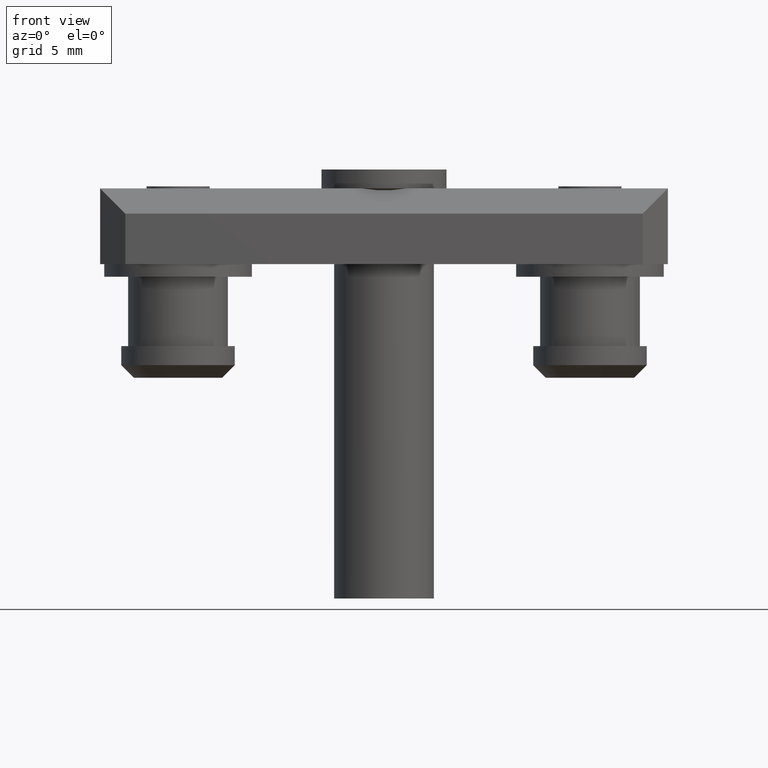
[diagram: clean part render]
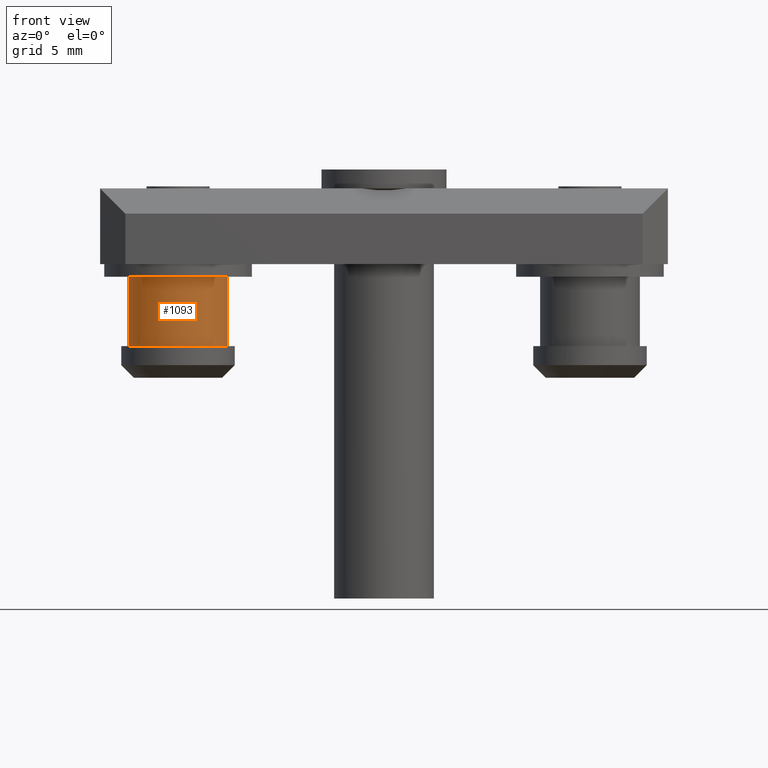
[diagram: same view with one face highlighted and labeled with its STEP entity id]
A machine part, front view. The second image highlights one B-rep face of the part: STEP entity #1093.
In plain terms, the highlighted cylindrical surface (bore or boss wall) has radius 3.95 mm, axis along (0, 0, 1).
Its self-contained STEP definition (entity closure, byte-faithful):
#107=FACE_OUTER_BOUND('',#172,.T.);
#172=EDGE_LOOP('',(#832,#833,#834,#835,#836,#837));
#256=LINE('',#1720,#353);
#353=VECTOR('',#1413,3.95);
#430=CIRCLE('',#1198,3.95);
#431=CIRCLE('',#1199,3.95);
#432=CIRCLE('',#1201,3.95);
#433=CIRCLE('',#1202,3.95);
#501=VERTEX_POINT('',#1711);
#502=VERTEX_POINT('',#1712);
#503=VERTEX_POINT('',#1716);
#504=VERTEX_POINT('',#1717);
#622=EDGE_CURVE('',#501,#502,#430,.T.);
#623=EDGE_CURVE('',#502,#501,#431,.T.);
#624=EDGE_CURVE('',#503,#504,#432,.T.);
#625=EDGE_CURVE('',#504,#503,#433,.T.);
#626=EDGE_CURVE('',#504,#502,#256,.T.);
#832=ORIENTED_EDGE('',*,*,#624,.F.);
#833=ORIENTED_EDGE('',*,*,#625,.F.);
#834=ORIENTED_EDGE('',*,*,#626,.T.);
#835=ORIENTED_EDGE('',*,*,#623,.T.);
#836=ORIENTED_EDGE('',*,*,#622,.T.);
#837=ORIENTED_EDGE('',*,*,#626,.F.);
#998=CYLINDRICAL_SURFACE('',#1200,3.95);
#1093=ADVANCED_FACE('',(#107),#998,.T.);
#1198=AXIS2_PLACEMENT_3D('',#1713,#1403,#1404);
#1199=AXIS2_PLACEMENT_3D('',#1714,#1405,#1406);
#1200=AXIS2_PLACEMENT_3D('',#1715,#1407,#1408);
#1201=AXIS2_PLACEMENT_3D('',#1718,#1409,#1410);
#1202=AXIS2_PLACEMENT_3D('',#1719,#1411,#1412);
#1403=DIRECTION('center_axis',(0.,0.,1.));
#1404=DIRECTION('ref_axis',(1.,0.,0.));
#1405=DIRECTION('center_axis',(0.,0.,1.));
#1406=DIRECTION('ref_axis',(1.,0.,0.));
#1407=DIRECTION('center_axis',(0.,0.,1.));
#1408=DIRECTION('ref_axis',(-1.,0.,0.));
#1409=DIRECTION('center_axis',(0.,0.,1.));
#1410=DIRECTION('ref_axis',(1.,0.,0.));
#1411=DIRECTION('center_axis',(0.,0.,1.));
#1412=DIRECTION('ref_axis',(1.,0.,0.));
#1413=DIRECTION('',(0.,0.,-1.));
#1711=CARTESIAN_POINT('',(-12.5055132433525,18.9327112716979,7.25470643910741));
#1712=CARTESIAN_POINT('',(-4.60551324335251,18.9327112716979,7.25470643910741));
#1713=CARTESIAN_POINT('Origin',(-8.55551324335251,18.9327112716979,7.25470643910741));
#1714=CARTESIAN_POINT('Origin',(-8.55551324335251,18.9327112716979,7.25470643910741));
#1715=CARTESIAN_POINT('Origin',(-8.55551324335251,18.9327112716979,10.0047064391074));
#1716=CARTESIAN_POINT('',(-12.5055132433525,18.9327112716979,12.7547064391074));
#1717=CARTESIAN_POINT('',(-4.60551324335251,18.9327112716979,12.7547064391074));
#1718=CARTESIAN_POINT('Origin',(-8.55551324335251,18.9327112716979,12.7547064391074));
#1719=CARTESIAN_POINT('Origin',(-8.55551324335251,18.9327112716979,12.7547064391074));
#1720=CARTESIAN_POINT('',(-4.60551324335251,18.9327112716979,10.0047064391074));